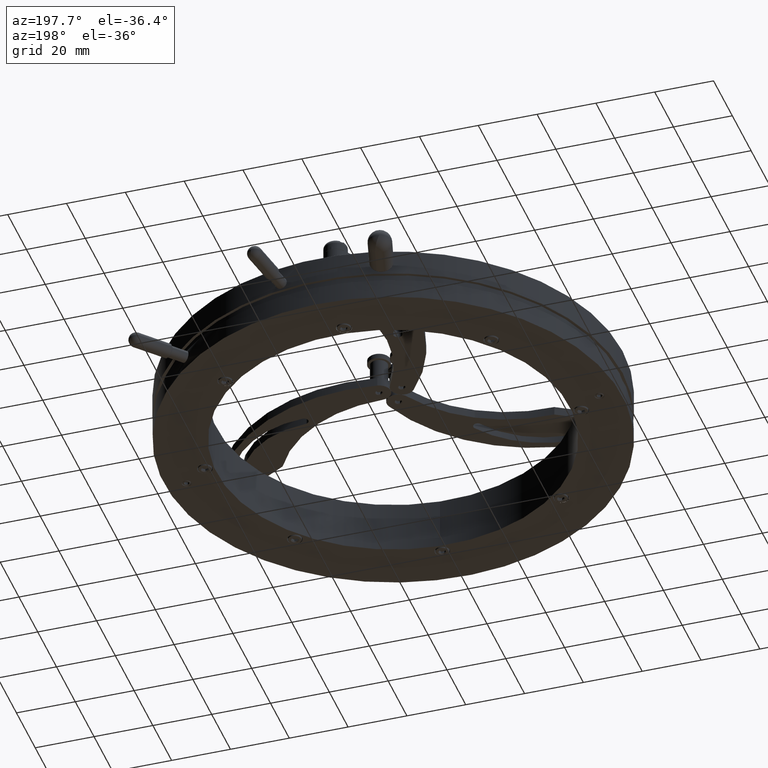
[diagram: clean part render]
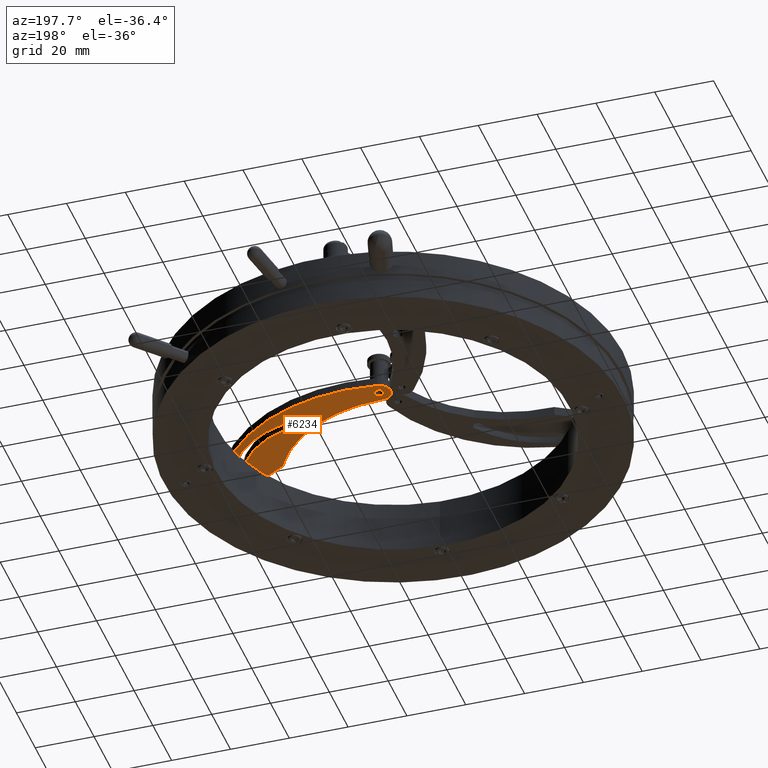
[diagram: same view with one face highlighted and labeled with its STEP entity id]
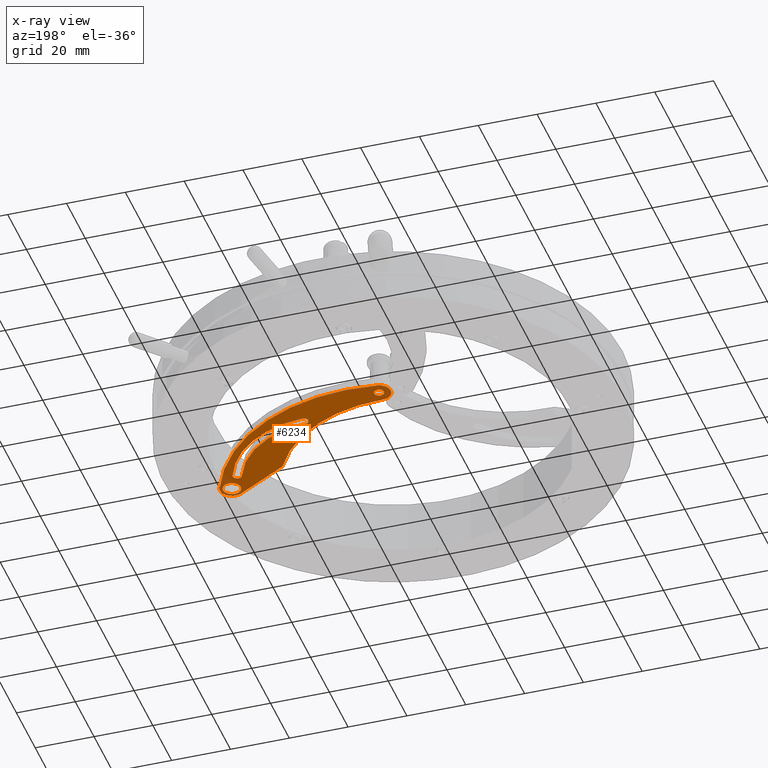
[diagram: x-ray of the same camera — body ghosted, the highlighted face saturated]
A machine part, auxiliary view. The second image highlights one B-rep face of the part: STEP entity #6234.
The next image is the same camera in x-ray: the body ghosted, the highlighted face saturated — about 3% of this face is hidden behind the body in this view.
In plain terms, the highlighted planar face has unit normal (-0, -0, -1).
Its self-contained STEP definition (entity closure, byte-faithful):
#90 = EDGE_CURVE ( 'NONE', #8210, #4189, #10437, .T. ) ;
#96 = VERTEX_POINT ( 'NONE', #6298 ) ;
#132 = DIRECTION ( 'NONE',  ( 1.165334996370982995E-16, 1.468391629326480899E-16, 1.000000000000000000 ) ) ;
#473 = CARTESIAN_POINT ( 'NONE',  ( 30.67735133391088098, -38.40703458877066367, 9.000000000000069278 ) ) ;
#557 = CARTESIAN_POINT ( 'NONE',  ( 65.48897952784493270, -33.36830173085686368, 9.000000000000024869 ) ) ;
#575 = CARTESIAN_POINT ( 'NONE',  ( 46.16582390828436644, -26.84023487287861442, 9.000000000000065725 ) ) ;
#576 = AXIS2_PLACEMENT_3D ( 'NONE', #9838, #5751, #7157 ) ;
#585 = EDGE_CURVE ( 'NONE', #5006, #7655, #1643, .T. ) ;
#665 = DIRECTION ( 'NONE',  ( -0.4996489414370458571, -0.8662279926906307770, 1.862610752198469525E-16 ) ) ;
#988 = ORIENTED_EDGE ( 'NONE', *, *, #11994, .F. ) ;
#1002 = VERTEX_POINT ( 'NONE', #4857 ) ;
#1098 = ORIENTED_EDGE ( 'NONE', *, *, #1104, .F. ) ;
#1104 = EDGE_CURVE ( 'NONE', #6604, #5500, #5981, .T. ) ;
#1111 = CARTESIAN_POINT ( 'NONE',  ( 66.98792635215603752, -30.76961775278501676, 9.000000000000024869 ) ) ;
#1245 = AXIS2_PLACEMENT_3D ( 'NONE', #3986, #8074, #2299 ) ;
#1265 = EDGE_CURVE ( 'NONE', #2822, #11823, #9711, .T. ) ;
#1357 = ORIENTED_EDGE ( 'NONE', *, *, #12341, .F. ) ;
#1572 = DIRECTION ( 'NONE',  ( -0.4996489414370441917, -0.8662279926906316652, 0.000000000000000000 ) ) ;
#1643 = CIRCLE ( 'NONE', #6038, 1.499999999999970912 ) ;
#1675 = AXIS2_PLACEMENT_3D ( 'NONE', #6573, #3718, #4680 ) ;
#1701 = DIRECTION ( 'NONE',  ( -0.4996489414370458571, -0.8662279926906308880, 0.000000000000000000 ) ) ;
#1769 = CARTESIAN_POINT ( 'NONE',  ( 4.224188273024602758, -1.992642231153869625, 9.000000000000026645 ) ) ;
#1905 = ORIENTED_EDGE ( 'NONE', *, *, #5789, .T. ) ;
#1988 = CARTESIAN_POINT ( 'NONE',  ( 46.16582390828436644, -26.84023487287861442, 9.000000000000065725 ) ) ;
#2054 = CARTESIAN_POINT ( 'NONE',  ( 32.07516570219525676, -5.436652198028448346, 9.000000000000024869 ) ) ;
#2164 = DIRECTION ( 'NONE',  ( -0.4996489414370457460, -0.8662279926906307770, 1.652117596168417338E-16 ) ) ;
#2182 = ORIENTED_EDGE ( 'NONE', *, *, #1265, .F. ) ;
#2299 = DIRECTION ( 'NONE',  ( 0.4996489414370456350, 0.8662279926906309990, 0.000000000000000000 ) ) ;
#2350 = CARTESIAN_POINT ( 'NONE',  ( 32.13870271893556207, -3.937998452994833976, 9.000000000000063949 ) ) ;
#2449 = ORIENTED_EDGE ( 'NONE', *, *, #11491, .F. ) ;
#2553 = CIRCLE ( 'NONE', #11605, 3.999999999999932943 ) ;
#2707 = AXIS2_PLACEMENT_3D ( 'NONE', #3945, #3205, #4009 ) ;
#2716 = DIRECTION ( 'NONE',  ( -1.165334996379712480E-16, -1.468391629341614702E-16, -1.000000000000000000 ) ) ;
#2801 = CARTESIAN_POINT ( 'NONE',  ( 61.69389166965428473, -27.13875053124244729, 9.000000000000024869 ) ) ;
#2822 = VERTEX_POINT ( 'NONE', #575 ) ;
#3006 = CARTESIAN_POINT ( 'NONE',  ( 60.28404892712106289, -27.65094526113049511, 9.000000000000024869 ) ) ;
#3053 = AXIS2_PLACEMENT_3D ( 'NONE', #6425, #3735, #8472 ) ;
#3120 = CIRCLE ( 'NONE', #2707, 2.999999999999948042 ) ;
#3205 = DIRECTION ( 'NONE',  ( 1.165334996370982995E-16, 1.468391629326480899E-16, 1.000000000000000000 ) ) ;
#3391 = AXIS2_PLACEMENT_3D ( 'NONE', #473, #4173, #2164 ) ;
#3465 = AXIS2_PLACEMENT_3D ( 'NONE', #2801, #3738, #12250 ) ;
#3478 = CIRCLE ( 'NONE', #3053, 34.49999999999938183 ) ;
#3558 = PLANE ( 'NONE',  #8222 ) ;
#3673 = CARTESIAN_POINT ( 'NONE',  ( 13.14388947780569694, -53.26783809865117547, 8.999999999999996447 ) ) ;
#3718 = DIRECTION ( 'NONE',  ( -1.165334996370982995E-16, -1.468391629326480899E-16, -1.000000000000000000 ) ) ;
#3735 = DIRECTION ( 'NONE',  ( 1.165334996370982995E-16, 1.468391629326480899E-16, 1.000000000000000000 ) ) ;
#3738 = DIRECTION ( 'NONE',  ( 1.165334996370982995E-16, 1.468391629326480899E-16, 1.000000000000000000 ) ) ;
#3945 = CARTESIAN_POINT ( 'NONE',  ( 65.48897952784493270, -33.36830173085686368, 9.000000000000024869 ) ) ;
#3969 = DIRECTION ( 'NONE',  ( -0.4996489414370452464, -0.8662279926906312211, 0.000000000000000000 ) ) ;
#3986 = CARTESIAN_POINT ( 'NONE',  ( 4.160037645349327740, 2.006843322885428105, 9.000000000000026645 ) ) ;
#4009 = DIRECTION ( 'NONE',  ( -0.4996489414370441917, -0.8662279926906316652, 0.000000000000000000 ) ) ;
#4045 = VERTEX_POINT ( 'NONE', #5226 ) ;
#4051 = CIRCLE ( 'NONE', #1245, 1.649999999999968603 ) ;
#4173 = DIRECTION ( 'NONE',  ( -1.165334996370982995E-16, -1.468391629326480899E-16, -1.000000000000000000 ) ) ;
#4189 = VERTEX_POINT ( 'NONE', #12322 ) ;
#4272 = DIRECTION ( 'NONE',  ( -0.4996489414370441917, -0.8662279926906316652, 0.000000000000000000 ) ) ;
#4335 = CARTESIAN_POINT ( 'NONE',  ( 3.335616891978218312, 0.5775671349459140513, 9.000000000000026645 ) ) ;
#4514 = ORIENTED_EDGE ( 'NONE', *, *, #90, .T. ) ;
#4551 = CIRCLE ( 'NONE', #5944, 2.999999999999948042 ) ;
#4680 = DIRECTION ( 'NONE',  ( -0.4996489414370458571, -0.8662279926906307770, 1.862610752198469525E-16 ) ) ;
#4711 = ORIENTED_EDGE ( 'NONE', *, *, #8243, .F. ) ;
#4846 = AXIS2_PLACEMENT_3D ( 'NONE', #3673, #7638, #9455 ) ;
#4857 = CARTESIAN_POINT ( 'NONE',  ( 32.01162868545510776, -6.935305943062089362, 9.000000000000063949 ) ) ;
#5005 = DIRECTION ( 'NONE',  ( -0.4996489414370458015, -0.8662279926906308880, 1.734723475976838649E-16 ) ) ;
#5006 = VERTEX_POINT ( 'NONE', #2350 ) ;
#5226 = CARTESIAN_POINT ( 'NONE',  ( 63.99003270353382788, -35.96698570892871771, 9.000000000000024869 ) ) ;
#5398 = DIRECTION ( 'NONE',  ( 0.4996489414370461901, 0.8662279926906306660, 0.000000000000000000 ) ) ;
#5500 = VERTEX_POINT ( 'NONE', #8618 ) ;
#5751 = DIRECTION ( 'NONE',  ( -1.165334996370982995E-16, -1.468391629326480899E-16, -1.000000000000000000 ) ) ;
#5789 = EDGE_CURVE ( 'NONE', #4189, #5006, #3478, .T. ) ;
#5816 = DIRECTION ( 'NONE',  ( 1.165334996370982995E-16, 1.468391629326480899E-16, 1.000000000000000000 ) ) ;
#5831 = EDGE_CURVE ( 'NONE', #96, #9394, #8100, .T. ) ;
#5862 = CIRCLE ( 'NONE', #4846, 59.99999999999891287 ) ;
#5944 = AXIS2_PLACEMENT_3D ( 'NONE', #557, #10120, #1572 ) ;
#5948 = EDGE_CURVE ( 'NONE', #7655, #1002, #9904, .T. ) ;
#5981 = CIRCLE ( 'NONE', #576, 1.649999999999968603 ) ;
#6038 = AXIS2_PLACEMENT_3D ( 'NONE', #8747, #132, #3969 ) ;
#6098 = CARTESIAN_POINT ( 'NONE',  ( 13.14388947780569694, -53.26783809865117547, 8.999999999999996447 ) ) ;
#6234 = ADVANCED_FACE ( 'NONE', ( #12288, #8293, #10401, #12116 ), #3558, .T. ) ;
#6276 = ORIENTED_EDGE ( 'NONE', *, *, #5948, .T. ) ;
#6298 = CARTESIAN_POINT ( 'NONE',  ( 3.518333943030964139, 5.955034852995054528, 9.000000000000065725 ) ) ;
#6324 = CARTESIAN_POINT ( 'NONE',  ( 28.23816025720494238, -8.216012730415313214, 9.000000000000024869 ) ) ;
#6400 = CARTESIAN_POINT ( 'NONE',  ( 4.971013661095717850, -48.55364185381398556, 9.000000000000033751 ) ) ;
#6425 = CARTESIAN_POINT ( 'NONE',  ( 30.67735133391088098, -38.40703458877066367, 9.000000000000069278 ) ) ;
#6444 = EDGE_CURVE ( 'NONE', #1002, #9495, #8793, .T. ) ;
#6528 = DIRECTION ( 'NONE',  ( 1.165334996370982995E-16, 1.468391629326480899E-16, 1.000000000000000000 ) ) ;
#6537 = CARTESIAN_POINT ( 'NONE',  ( 4.160037645349327740, 2.006843322885428105, 9.000000000000026645 ) ) ;
#6551 = ORIENTED_EDGE ( 'NONE', *, *, #7666, .F. ) ;
#6570 = AXIS2_PLACEMENT_3D ( 'NONE', #6098, #9927, #5005 ) ;
#6573 = CARTESIAN_POINT ( 'NONE',  ( 4.971013661095717850, -48.55364185381398556, 9.000000000000033751 ) ) ;
#6604 = VERTEX_POINT ( 'NONE', #4335 ) ;
#6753 = EDGE_LOOP ( 'NONE', ( #11157, #9671 ) ) ;
#6792 = EDGE_CURVE ( 'NONE', #12017, #4045, #3120, .T. ) ;
#6903 = EDGE_LOOP ( 'NONE', ( #2449, #2182, #4711, #6551, #11263, #988, #8710 ) ) ;
#7048 = CARTESIAN_POINT ( 'NONE',  ( 61.69389166965428473, -27.13875053124244729, 9.000000000000024869 ) ) ;
#7157 = DIRECTION ( 'NONE',  ( 0.4996489414370456350, 0.8662279926906309990, 0.000000000000000000 ) ) ;
#7206 = VERTEX_POINT ( 'NONE', #6324 ) ;
#7310 = EDGE_CURVE ( 'NONE', #9495, #8210, #11893, .T. ) ;
#7325 = CIRCLE ( 'NONE', #10497, 46.56698867246645790 ) ;
#7388 = CIRCLE ( 'NONE', #6570, 59.99999999999891287 ) ;
#7407 = CARTESIAN_POINT ( 'NONE',  ( 65.48897952784493270, -33.36830173085686368, 9.000000000000024869 ) ) ;
#7638 = DIRECTION ( 'NONE',  ( 1.165334996370982995E-16, 1.468391629326480899E-16, 1.000000000000000000 ) ) ;
#7655 = VERTEX_POINT ( 'NONE', #11177 ) ;
#7666 = EDGE_CURVE ( 'NONE', #9394, #7206, #12101, .T. ) ;
#7744 = EDGE_CURVE ( 'NONE', #12090, #10683, #5862, .T. ) ;
#7793 = EDGE_LOOP ( 'NONE', ( #1357, #1098 ) ) ;
#8074 = DIRECTION ( 'NONE',  ( -1.165334996370982995E-16, -1.468391629326480899E-16, -1.000000000000000000 ) ) ;
#8100 = CIRCLE ( 'NONE', #8677, 3.999999999999929390 ) ;
#8139 = EDGE_LOOP ( 'NONE', ( #12159, #4514, #1905, #10283, #6276, #10072 ) ) ;
#8172 = CARTESIAN_POINT ( 'NONE',  ( 69.22791453141918794, -31.94690627601453414, 9.000000000000023093 ) ) ;
#8188 = VECTOR ( 'NONE', #9590, 999.9999999999998863 ) ;
#8210 = VERTEX_POINT ( 'NONE', #10710 ) ;
#8222 = AXIS2_PLACEMENT_3D ( 'NONE', #7407, #2716, #9400 ) ;
#8243 = EDGE_CURVE ( 'NONE', #7206, #2822, #7325, .T. ) ;
#8283 = DIRECTION ( 'NONE',  ( -1.165334996370982995E-16, -1.468391629326480899E-16, -1.000000000000000000 ) ) ;
#8293 = FACE_BOUND ( 'NONE', #8139, .T. ) ;
#8321 = AXIS2_PLACEMENT_3D ( 'NONE', #2054, #5816, #9648 ) ;
#8472 = DIRECTION ( 'NONE',  ( -0.4996489414370457460, -0.8662279926906308880, 2.011273595335464564E-16 ) ) ;
#8618 = CARTESIAN_POINT ( 'NONE',  ( 4.984458398720437167, 3.436119510824942047, 9.000000000000026645 ) ) ;
#8677 = AXIS2_PLACEMENT_3D ( 'NONE', #6537, #10304, #1701 ) ;
#8710 = ORIENTED_EDGE ( 'NONE', *, *, #7744, .F. ) ;
#8747 = CARTESIAN_POINT ( 'NONE',  ( 32.07516570219525676, -5.436652198028448346, 9.000000000000024869 ) ) ;
#8793 = CIRCLE ( 'NONE', #3391, 31.49999999999943512 ) ;
#8989 = DIRECTION ( 'NONE',  ( 1.165334996370982995E-16, 1.468391629326480899E-16, 1.000000000000000000 ) ) ;
#9174 = CARTESIAN_POINT ( 'NONE',  ( 65.48897952784493270, -33.36830173085686368, 9.000000000000024869 ) ) ;
#9394 = VERTEX_POINT ( 'NONE', #1769 ) ;
#9400 = DIRECTION ( 'NONE',  ( 0.4996489414370458015, 0.8662279926906308880, -1.854220330928978648E-16 ) ) ;
#9455 = DIRECTION ( 'NONE',  ( -0.4996489414370458015, -0.8662279926906308880, 1.734723475976838649E-16 ) ) ;
#9495 = VERTEX_POINT ( 'NONE', #3006 ) ;
#9590 = DIRECTION ( 'NONE',  ( 0.8662279926906308880, -0.4996489414370458571, -2.757654718683680098E-17 ) ) ;
#9634 = AXIS2_PLACEMENT_3D ( 'NONE', #7048, #8989, #4272 ) ;
#9648 = DIRECTION ( 'NONE',  ( -0.4996489414370452464, -0.8662279926906312211, 0.000000000000000000 ) ) ;
#9671 = ORIENTED_EDGE ( 'NONE', *, *, #6792, .T. ) ;
#9711 = LINE ( 'NONE', #1988, #8188 ) ;
#9838 = CARTESIAN_POINT ( 'NONE',  ( 4.160037645349327740, 2.006843322885428105, 9.000000000000026645 ) ) ;
#9904 = CIRCLE ( 'NONE', #8321, 1.499999999999970912 ) ;
#9927 = DIRECTION ( 'NONE',  ( 1.165334996370982995E-16, 1.468391629326480899E-16, 1.000000000000000000 ) ) ;
#9981 = EDGE_CURVE ( 'NONE', #4045, #12017, #4551, .T. ) ;
#10072 = ORIENTED_EDGE ( 'NONE', *, *, #6444, .T. ) ;
#10120 = DIRECTION ( 'NONE',  ( 1.165334996370982995E-16, 1.468391629326480899E-16, 1.000000000000000000 ) ) ;
#10283 = ORIENTED_EDGE ( 'NONE', *, *, #585, .T. ) ;
#10304 = DIRECTION ( 'NONE',  ( 1.165334996370982995E-16, 1.468391629326480899E-16, 1.000000000000000000 ) ) ;
#10401 = FACE_BOUND ( 'NONE', #6753, .T. ) ;
#10437 = CIRCLE ( 'NONE', #9634, 1.499999999999974021 ) ;
#10497 = AXIS2_PLACEMENT_3D ( 'NONE', #6400, #8283, #665 ) ;
#10683 = VERTEX_POINT ( 'NONE', #11527 ) ;
#10710 = CARTESIAN_POINT ( 'NONE',  ( 60.94441825749871811, -28.43809252027839918, 9.000000000000024869 ) ) ;
#11157 = ORIENTED_EDGE ( 'NONE', *, *, #9981, .T. ) ;
#11177 = CARTESIAN_POINT ( 'NONE',  ( 31.32569229003969014, -6.735994187064394012, 9.000000000000024869 ) ) ;
#11263 = ORIENTED_EDGE ( 'NONE', *, *, #5831, .F. ) ;
#11491 = EDGE_CURVE ( 'NONE', #11823, #12090, #2553, .T. ) ;
#11527 = CARTESIAN_POINT ( 'NONE',  ( 43.12282596402844348, -1.294158537213325966, 8.999999999999985789 ) ) ;
#11605 = AXIS2_PLACEMENT_3D ( 'NONE', #9174, #6528, #5398 ) ;
#11823 = VERTEX_POINT ( 'NONE', #12371 ) ;
#11893 = CIRCLE ( 'NONE', #3465, 1.499999999999974021 ) ;
#11994 = EDGE_CURVE ( 'NONE', #10683, #96, #7388, .T. ) ;
#12017 = VERTEX_POINT ( 'NONE', #1111 ) ;
#12090 = VERTEX_POINT ( 'NONE', #8172 ) ;
#12101 = CIRCLE ( 'NONE', #1675, 46.56698867246645790 ) ;
#12116 = FACE_OUTER_BOUND ( 'NONE', #6903, .T. ) ;
#12159 = ORIENTED_EDGE ( 'NONE', *, *, #7310, .T. ) ;
#12250 = DIRECTION ( 'NONE',  ( -0.4996489414370441917, -0.8662279926906316652, 0.000000000000000000 ) ) ;
#12288 = FACE_BOUND ( 'NONE', #7793, .T. ) ;
#12322 = CARTESIAN_POINT ( 'NONE',  ( 63.10373441218841606, -26.62655580135497146, 8.999999999999985789 ) ) ;
#12341 = EDGE_CURVE ( 'NONE', #5500, #6604, #4051, .T. ) ;
#12371 = CARTESIAN_POINT ( 'NONE',  ( 63.49038376209670531, -36.83321370161920782, 8.999999999999987566 ) ) ;